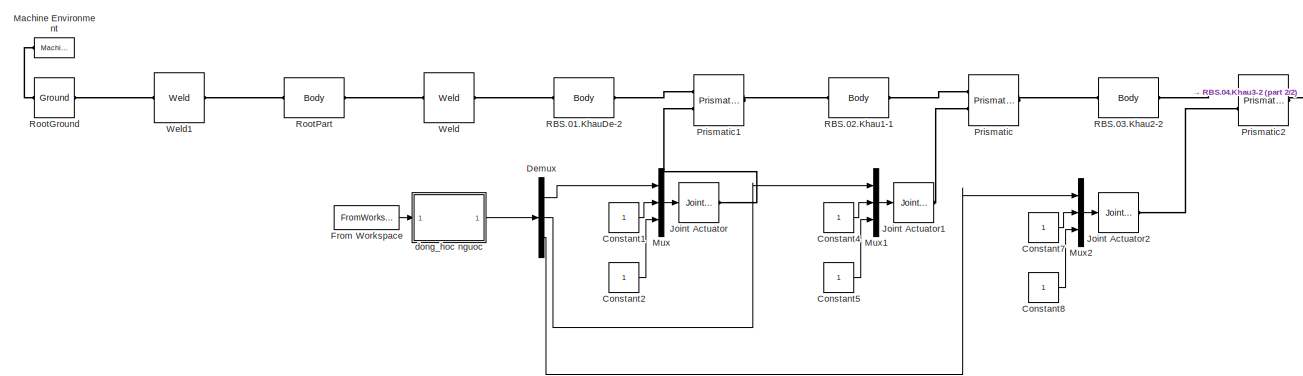
[diagram: root canvas - part 1/2, left side, full height]
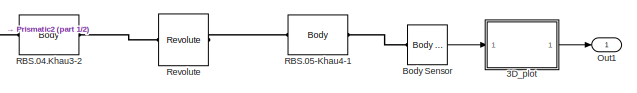
[diagram: root canvas - part 2/2, top right region]
MODEL slx_5b75f7489f0f
KIND model
CONFIG AbsTol = auto
CONFIG FixedStep = auto
CONFIG MaxStep = auto
CONFIG MinStep = auto
CONFIG RelTol = 1e-3
CONFIG SampleTimeConstraint = Unconstrained
CONFIG Solver = ode45
CONFIG SolverMode = Auto
CONFIG SolverName = ode45
CONFIG StartTime = 0.0
CONFIG StopTime = 322
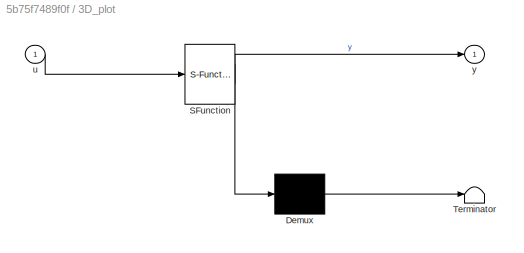
BLOCK [SubSystem] 3D_plot
  ErrorFcn = Stateflow.Translate.translate
  PermitHierarchicalResolution = ExplicitOnly
  Ports = [1, 1]
  RequestExecContextInheritance = off
  SFBlockType = MATLAB Function
  TreatAsAtomicUnit = on
  Variant = off
BLOCK [Demux] 3D_plot/ Demux 
  Outputs = 1
  Ports = [1, 1]
BLOCK [S-Function] 3D_plot/ SFunction 
  EnableBusSupport = off
  FunctionName = sf_sfun
  PortCounts = [1 2]
  Ports = [1, 2]
  SFunctionDeploymentMode = off
  Tag = Stateflow S-Function QuyDao 2
BLOCK [Terminator] 3D_plot/ Terminator 
BLOCK [Inport] 3D_plot/u
  IconDisplay = Port number
BLOCK [Outport] 3D_plot/y
  IconDisplay = Port number
BLOCK [Reference] Body Sensor  REF=mblibv1/Sensors & 
Actuators/Body Sensor
  Ports = [0, 1, 0, 0, 0, 1]
  SourceBlock = mblibv1/Sensors & \nActuators/Body Sensor
  SourceType = Body Sensor
BLOCK [Constant] Constant1
BLOCK [Constant] Constant2
BLOCK [Constant] Constant4
BLOCK [Constant] Constant5
BLOCK [Constant] Constant7
BLOCK [Constant] Constant8
BLOCK [Demux] Demux
  DisplayOption = bar
  Outputs = 3
  Ports = [1, 3]
BLOCK [FromWorkspace] From Workspace
  SampleTime = 0.4
  VariableName = s
  ZeroCross = on
BLOCK [Reference] Joint Actuator  REF=mblibv1/Sensors & 
Actuators/Joint Actuator
  Ports = [1, 0, 0, 0, 0, 0, 1]
  SourceBlock = mblibv1/Sensors & \nActuators/Joint Actuator
  SourceType = Joint Actuator
BLOCK [Reference] Joint Actuator1  REF=mblibv1/Sensors & 
Actuators/Joint Actuator
  Ports = [1, 0, 0, 0, 0, 0, 1]
  SourceBlock = mblibv1/Sensors & \nActuators/Joint Actuator
  SourceType = Joint Actuator
BLOCK [Reference] Joint Actuator2  REF=mblibv1/Sensors & 
Actuators/Joint Actuator
  Ports = [1, 0, 0, 0, 0, 0, 1]
  SourceBlock = mblibv1/Sensors & \nActuators/Joint Actuator
  SourceType = Joint Actuator
BLOCK [Reference] Machine Environment  REF=mblibv1/Bodies/Machine
Environment
  Ports = [0, 0, 0, 0, 0, 0, 1]
  SourceBlock = mblibv1/Bodies/Machine\nEnvironment
  SourceType = Machine Environment
BLOCK [Mux] Mux
  DisplayOption = bar
  Inputs = 3
  Ports = [3, 1]
BLOCK [Mux] Mux1
  DisplayOption = bar
  Inputs = 3
  Ports = [3, 1]
BLOCK [Mux] Mux2
  DisplayOption = bar
  Inputs = 3
  Ports = [3, 1]
BLOCK [Outport] Out1
  IconDisplay = Port number
BLOCK [Reference] Prismatic  REF=mblibv1/Joints/Prismatic
  Ports = [0, 0, 0, 0, 0, 2, 1]
  SourceBlock = mblibv1/Joints/Prismatic
  SourceType = Prismatic
BLOCK [Reference] Prismatic1  REF=mblibv1/Joints/Prismatic
  Ports = [0, 0, 0, 0, 0, 2, 1]
  SourceBlock = mblibv1/Joints/Prismatic
  SourceType = Prismatic
BLOCK [Reference] Prismatic2  REF=mblibv1/Joints/Prismatic
  Ports = [0, 0, 0, 0, 0, 2, 1]
  SourceBlock = mblibv1/Joints/Prismatic
  SourceType = Prismatic
BLOCK [Reference] RBS.01.KhauDe-2  REF=mblibv1/Bodies/Body
  Ports = [0, 0, 0, 0, 0, 1, 1]
  SourceBlock = mblibv1/Bodies/Body
  SourceType = Body
BLOCK [Reference] RBS.02.Khau1-1  REF=mblibv1/Bodies/Body
  Ports = [0, 0, 0, 0, 0, 1, 1]
  SourceBlock = mblibv1/Bodies/Body
  SourceType = Body
BLOCK [Reference] RBS.03.Khau2-2  REF=mblibv1/Bodies/Body
  Ports = [0, 0, 0, 0, 0, 1, 1]
  SourceBlock = mblibv1/Bodies/Body
  SourceType = Body
BLOCK [Reference] RBS.04.Khau3-2  REF=mblibv1/Bodies/Body
  Ports = [0, 0, 0, 0, 0, 1, 1]
  SourceBlock = mblibv1/Bodies/Body
  SourceType = Body
BLOCK [Reference] RBS.05-Khau4-1  REF=mblibv1/Bodies/Body
  Ports = [0, 0, 0, 0, 0, 1, 1]
  SourceBlock = mblibv1/Bodies/Body
  SourceType = Body
BLOCK [Reference] Revolute  REF=mblibv1/Joints/Revolute
  Ports = [0, 0, 0, 0, 0, 1, 1]
  SourceBlock = mblibv1/Joints/Revolute
  SourceType = Revolute
BLOCK [Reference] RootGround  REF=mblibv1/Bodies/Ground
  Ports = [0, 0, 0, 0, 0, 1, 1]
  SourceBlock = mblibv1/Bodies/Ground
  SourceType = Ground
  UserDataPersistent = on
BLOCK [Reference] RootPart  REF=mblibv1/Bodies/Body
  Ports = [0, 0, 0, 0, 0, 1, 1]
  SourceBlock = mblibv1/Bodies/Body
  SourceType = Body
BLOCK [Reference] Weld  REF=mblibv1/Joints/Weld
  Ports = [0, 0, 0, 0, 0, 1, 1]
  SourceBlock = mblibv1/Joints/Weld
  SourceType = Weld
BLOCK [Reference] Weld1  REF=mblibv1/Joints/Weld
  Ports = [0, 0, 0, 0, 0, 1, 1]
  SourceBlock = mblibv1/Joints/Weld
  SourceType = Weld
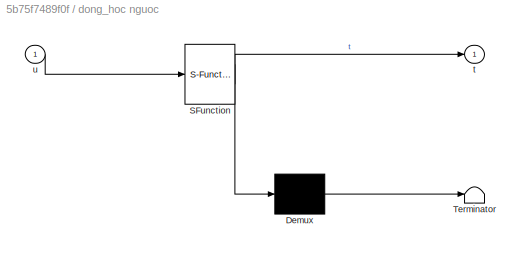
BLOCK [SubSystem] dong_hoc nguoc
  ErrorFcn = Stateflow.Translate.translate
  PermitHierarchicalResolution = ExplicitOnly
  Ports = [1, 1]
  RequestExecContextInheritance = off
  SFBlockType = MATLAB Function
  TreatAsAtomicUnit = on
  Variant = off
BLOCK [Demux] dong_hoc nguoc/ Demux 
  Outputs = 1
  Ports = [1, 1]
BLOCK [S-Function] dong_hoc nguoc/ SFunction 
  EnableBusSupport = off
  FunctionName = sf_sfun
  PortCounts = [1 2]
  Ports = [1, 2]
  SFunctionDeploymentMode = off
  Tag = Stateflow S-Function QuyDao 4
BLOCK [Terminator] dong_hoc nguoc/ Terminator 
BLOCK [Outport] dong_hoc nguoc/t
  IconDisplay = Port number
BLOCK [Inport] dong_hoc nguoc/u
  IconDisplay = Port number
LINE 3D_plot:1 -> Out1:1
LINE Body Sensor:1 -> 3D_plot:1
LINE Constant1:1 -> Mux:2
LINE Constant2:1 -> Mux:3
LINE Constant4:1 -> Mux1:2
LINE Constant5:1 -> Mux1:3
LINE Constant7:1 -> Mux2:2
LINE Constant8:1 -> Mux2:3
LINE Demux:1 -> Mux:1
LINE Demux:2 -> Mux1:1
LINE Demux:3 -> Mux2:1
LINE From Workspace:1 -> dong_hoc nguoc:1
LINE Mux1:1 -> Joint Actuator1:1
LINE Mux2:1 -> Joint Actuator2:1
LINE Mux:1 -> Joint Actuator:1
LINE dong_hoc nguoc:1 -> Demux:1
PLINE Body Sensor:LConn1 -- RBS.05-Khau4-1:RConn1
PLINE Joint Actuator1:RConn1 -- Prismatic:LConn2
PLINE Joint Actuator2:RConn1 -- Prismatic2:LConn2
PLINE Joint Actuator:RConn1 -- Prismatic1:LConn2
PLINE Machine Environment:RConn1 -- RootGround:LConn1
PLINE Prismatic1:LConn1 -- RBS.01.KhauDe-2:RConn1
PLINE Prismatic1:RConn1 -- RBS.02.Khau1-1:LConn1
PLINE Prismatic2:LConn1 -- RBS.03.Khau2-2:RConn1
PLINE Prismatic2:RConn1 -- RBS.04.Khau3-2:LConn1
PLINE Prismatic:LConn1 -- RBS.02.Khau1-1:RConn1
PLINE Prismatic:RConn1 -- RBS.03.Khau2-2:LConn1
PLINE RBS.01.KhauDe-2:LConn1 -- Weld:RConn1
PLINE RBS.04.Khau3-2:RConn1 -- Revolute:LConn1
PLINE RBS.05-Khau4-1:LConn1 -- Revolute:RConn1
PLINE RootGround:RConn1 -- Weld1:LConn1
PLINE RootPart:LConn1 -- Weld1:RConn1
PLINE RootPart:RConn1 -- Weld:LConn1
CHART 3D_plot states=1 transitions=1
  STATE_LABEL 'eML_blk_kernel()'
  STATE_LABEL "SCRIPT:\nfunction y = fcn(u)\n%#codegen\nx1=u(1,1)\nx2=u(2,1)\nx3=u(3,1)\nplot3(-x3,x2,x1,'b.');\nhold on;\ngrid on\ny = u;"
CHART dong_hoc nguoc states=1 transitions=1
  STATE_LABEL 'eML_blk_kernel()'
  STATE_LABEL 'SCRIPT:\nfunction t = fcn(u)\n%#codegen\nx=u(1);\ny=u(2);\nz=u(3);\nvx=u(4);\nvy=u(5);\nvz=u(6);\nax=u(7);\nay=u(8);\naz=u(9)\nd1=60;\nd2=360;\nd3=620;\na3=110;\nt1=z-d1;\nt2=-x+d2-a3;\nt3=-y-d3;\n\nt1_dot=vz;\nt2_dot=-vx;\nt3_dot=-vy;\n\nt1_2dot=az;\nt2_2dot=-ax;\nt3_2dot=-ay;\nt=[t1 t2 t3 ]\n'
